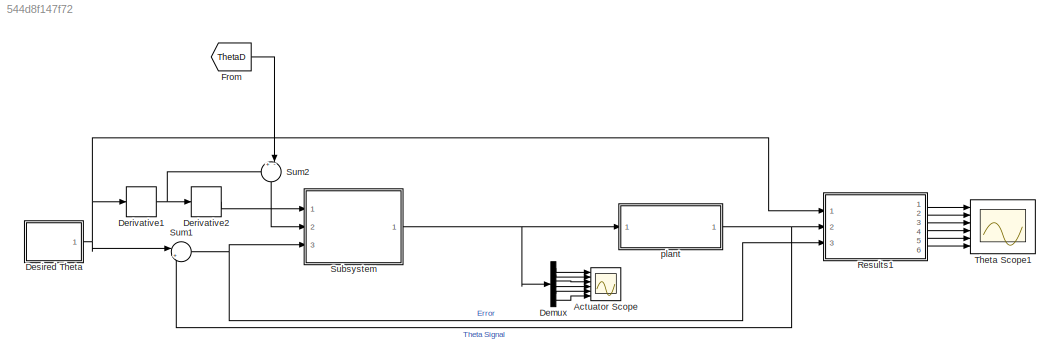
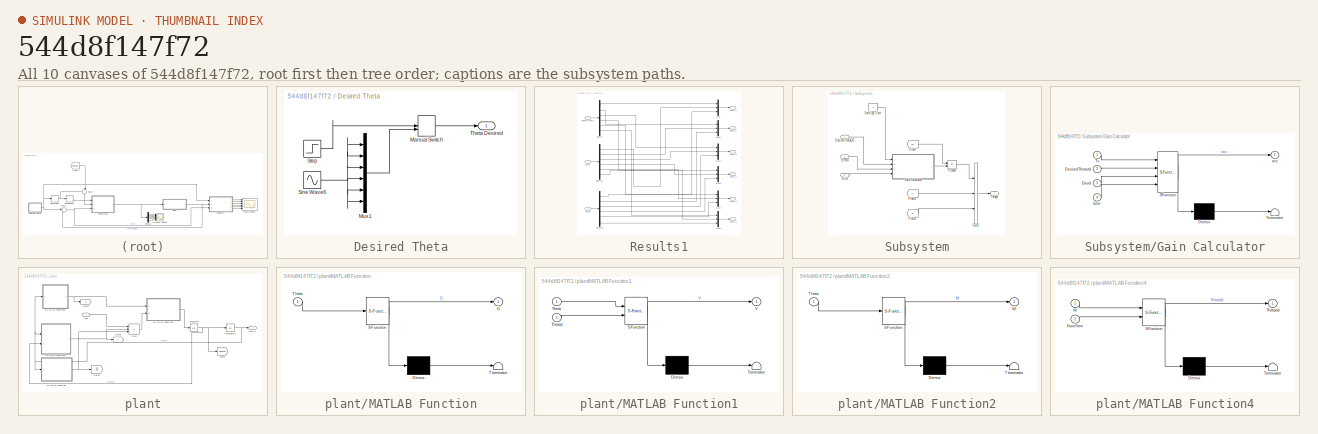
[diagram: thumbnail index - all 10 canvases of the model, root first then tree order]
MODEL slx_544d8f147f72
KIND model
CONFIG AbsTol = auto
CONFIG EnableMultiTasking = off
CONFIG FixedStep = auto
CONFIG MaxStep = auto
CONFIG MinStep = auto
CONFIG RelTol = 1e-3
CONFIG SampleTimeConstraint = Unconstrained
CONFIG SolverName = FixedStepAuto
CONFIG StartTime = 0.0
CONFIG StopTime = 20
BLOCK [Scope] Actuator Scope
  Floating = off
  NumInputPorts = 6
  Ports = [6]
  ScopeSpecificationString = Simulink.scopes.TimeScopeBlockCfg('CurrentConfiguration', extmgr.ConfigurationSet(extmgr.Configuration('Core','General UI',true),extmgr.Configuration('Core','Source UI',true),extmgr.Configuration('Sources','WiredSimulink',true,'DataLoggingVariableName','ScopeData1'),extmgr.Configuration('Visuals','Time Domain',true,'SerializedDisplays',{struct('MinYLimReal','-28984247.08049','MaxYLimReal','2840806...<+4973ch>
BLOCK [Demux] Demux
  Outputs = 6
  Ports = [1, 6]
BLOCK [Derivative] Derivative1
BLOCK [Derivative] Derivative2
BLOCK [SubSystem] Desired Theta
  Ports = [0, 1]
  RequestExecContextInheritance = off
  ShowPortLabels = none
BLOCK [ManualSwitch] Desired Theta/Manual Switch
BLOCK [Mux] Desired Theta/Mux1
  DisplayOption = bar
  Inputs = 6
  Ports = [6, 1]
BLOCK [Sin] Desired Theta/Sine Wave6
  Ports = [0, 1]
  SampleTime = 0
BLOCK [Step] Desired Theta/Step
  After = [1;1;1;1;1;1];
  Before = [0;0;0;0;0;0];
  SampleTime = 0
  Time = 0
BLOCK [Outport] Desired Theta/Theta Desired
  VectorParamsAs1DForOutWhenUnconnected = off
BLOCK [From] From
  GotoTag = ThetaD
  TagVisibility = global
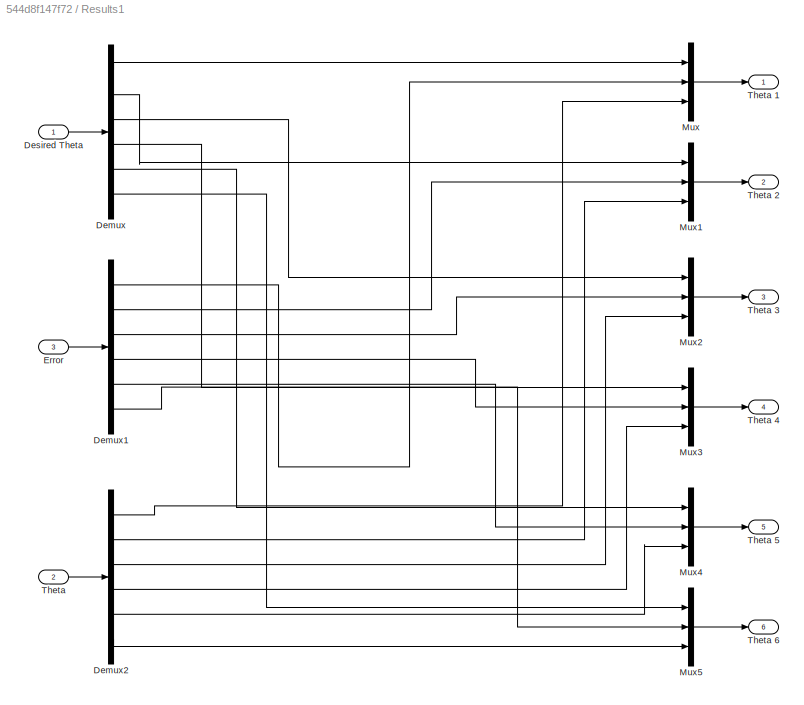
BLOCK [SubSystem] Results1
  Ports = [3, 6]
  RequestExecContextInheritance = off
BLOCK [Demux] Results1/Demux
  Outputs = 6
  Ports = [1, 6]
BLOCK [Demux] Results1/Demux1
  Outputs = 6
  Ports = [1, 6]
BLOCK [Demux] Results1/Demux2
  Outputs = 6
  Ports = [1, 6]
BLOCK [Inport] Results1/Desired Theta
BLOCK [Inport] Results1/Error
  Port = 3
BLOCK [Mux] Results1/Mux
  DisplayOption = bar
  Inputs = 3
  Ports = [3, 1]
BLOCK [Mux] Results1/Mux1
  DisplayOption = bar
  Inputs = 3
  Ports = [3, 1]
BLOCK [Mux] Results1/Mux2
  DisplayOption = bar
  Inputs = 3
  Ports = [3, 1]
BLOCK [Mux] Results1/Mux3
  DisplayOption = bar
  Inputs = 3
  Ports = [3, 1]
BLOCK [Mux] Results1/Mux4
  DisplayOption = bar
  Inputs = 3
  Ports = [3, 1]
BLOCK [Mux] Results1/Mux5
  DisplayOption = bar
  Inputs = 3
  Ports = [3, 1]
BLOCK [Inport] Results1/Theta
  Port = 2
BLOCK [Outport] Results1/Theta 1
  VectorParamsAs1DForOutWhenUnconnected = off
BLOCK [Outport] Results1/Theta 2
  Port = 2
  VectorParamsAs1DForOutWhenUnconnected = off
BLOCK [Outport] Results1/Theta 3
  Port = 3
  VectorParamsAs1DForOutWhenUnconnected = off
BLOCK [Outport] Results1/Theta 4
  Port = 4
  VectorParamsAs1DForOutWhenUnconnected = off
BLOCK [Outport] Results1/Theta 5
  Port = 5
  VectorParamsAs1DForOutWhenUnconnected = off
BLOCK [Outport] Results1/Theta 6
  Port = 6
  VectorParamsAs1DForOutWhenUnconnected = off
BLOCK [SubSystem] Subsystem
  Ports = [3, 1]
  RequestExecContextInheritance = off
BLOCK [Inport] Subsystem/Desired ThetaDD
BLOCK [Inport] Subsystem/Error
  Port = 3
BLOCK [Inport] Subsystem/ErrorD
  Port = 2
BLOCK [From] Subsystem/From
  GotoTag = M
  TagVisibility = global
BLOCK [From] Subsystem/From1
  GotoTag = V
  TagVisibility = global
BLOCK [From] Subsystem/From2
  GotoTag = G
  TagVisibility = global
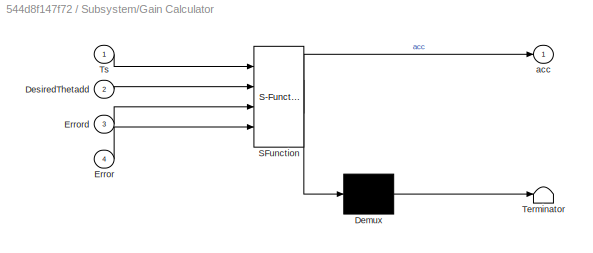
BLOCK [SubSystem] Subsystem/Gain Calculator
  ErrorFcn = Stateflow.Translate.translate
  PermitHierarchicalResolution = ExplicitOnly
  Ports = [4, 1]
  RequestExecContextInheritance = off
  SFBlockType = MATLAB Function
  TreatAsAtomicUnit = on
BLOCK [Demux] Subsystem/Gain Calculator/ Demux 
  Outputs = 1
  Ports = [1, 1]
BLOCK [S-Function] Subsystem/Gain Calculator/ SFunction 
  EnableBusSupport = on
  FunctionName = sf_sfun
  PortCounts = [4 2]
  Ports = [4, 2]
  SFcnIsStateOwnerBlock = off
  SFunctionDeploymentMode = off
  Tag = Stateflow S-Function 9
BLOCK [Terminator] Subsystem/Gain Calculator/ Terminator 
BLOCK [Inport] Subsystem/Gain Calculator/DesiredThetadd
  Port = 2
BLOCK [Inport] Subsystem/Gain Calculator/Error
  Port = 4
BLOCK [Inport] Subsystem/Gain Calculator/Errord
  Port = 3
BLOCK [Inport] Subsystem/Gain Calculator/Ts
BLOCK [Outport] Subsystem/Gain Calculator/acc
  VectorParamsAs1DForOutWhenUnconnected = off
BLOCK [Product] Subsystem/Product
  Multiplication = Matrix(*)
  Ports = [2, 1]
BLOCK [Constant] Subsystem/Settling Time
BLOCK [Sum] Subsystem/Sum1
  IconShape = rectangular
  Inputs = +++
  Ports = [3, 1]
BLOCK [Outport] Subsystem/Torque 
  VectorParamsAs1DForOutWhenUnconnected = off
BLOCK [Sum] Sum1
  Inputs = |+-
  Ports = [2, 1]
BLOCK [Sum] Sum2
  Inputs = +-|
  NameLocation = left
  Ports = [2, 1]
BLOCK [Scope] Theta Scope1
  Floating = off
  NumInputPorts = 6
  Ports = [6]
  ScopeSpecificationString = Simulink.scopes.TimeScopeBlockCfg('CurrentConfiguration', extmgr.ConfigurationSet(extmgr.Configuration('Core','General UI',true),extmgr.Configuration('Core','Source UI',true),extmgr.Configuration('Sources','WiredSimulink',true,'DataLoggingVariableName','ScopeData1'),extmgr.Configuration('Visuals','Time Domain',true,'SerializedDisplays',{struct('MinYLimReal','-1.25466','MaxYLimReal','1.25616','YLab...<+5202ch>
BLOCK [SubSystem] plant
  Ports = [1, 1]
  RequestExecContextInheritance = off
BLOCK [Goto] plant/Goto
  GotoTag = ThetaD
  TagVisibility = global
BLOCK [Goto] plant/Goto1
  GotoTag = G
  TagVisibility = global
BLOCK [Goto] plant/Goto2
  GotoTag = V
  TagVisibility = global
BLOCK [Goto] plant/Goto3
  GotoTag = M
  TagVisibility = global
BLOCK [Integrator] plant/Integrator
  InitialCondition = [0;0;0;0;0;0]
  Ports = [1, 1]
BLOCK [Integrator] plant/Integrator1
  InitialCondition = [0;0;0;0;0;0]
  Ports = [1, 1]
BLOCK [SubSystem] plant/MATLAB Function
  ErrorFcn = Stateflow.Translate.translate
  PermitHierarchicalResolution = ExplicitOnly
  Ports = [1, 1]
  RequestExecContextInheritance = off
  SFBlockType = MATLAB Function
  TreatAsAtomicUnit = on
BLOCK [Demux] plant/MATLAB Function/ Demux 
  Outputs = 1
  Ports = [1, 1]
BLOCK [S-Function] plant/MATLAB Function/ SFunction 
  EnableBusSupport = on
  FunctionName = sf_sfun
  PortCounts = [1 2]
  Ports = [1, 2]
  SFcnIsStateOwnerBlock = off
  SFunctionDeploymentMode = off
  Tag = Stateflow S-Function 4
BLOCK [Terminator] plant/MATLAB Function/ Terminator 
BLOCK [Outport] plant/MATLAB Function/G
  VectorParamsAs1DForOutWhenUnconnected = off
BLOCK [Inport] plant/MATLAB Function/Theta
BLOCK [SubSystem] plant/MATLAB Function1
  ErrorFcn = Stateflow.Translate.translate
  PermitHierarchicalResolution = ExplicitOnly
  Ports = [2, 1]
  RequestExecContextInheritance = off
  SFBlockType = MATLAB Function
  TreatAsAtomicUnit = on
BLOCK [Demux] plant/MATLAB Function1/ Demux 
  Outputs = 1
  Ports = [1, 1]
BLOCK [S-Function] plant/MATLAB Function1/ SFunction 
  EnableBusSupport = on
  FunctionName = sf_sfun
  PortCounts = [2 2]
  Ports = [2, 2]
  SFcnIsStateOwnerBlock = off
  SFunctionDeploymentMode = off
  Tag = Stateflow S-Function 1
BLOCK [Terminator] plant/MATLAB Function1/ Terminator 
BLOCK [Inport] plant/MATLAB Function1/Theta
BLOCK [Inport] plant/MATLAB Function1/Thetad
  Port = 2
BLOCK [Outport] plant/MATLAB Function1/V
  VectorParamsAs1DForOutWhenUnconnected = off
BLOCK [SubSystem] plant/MATLAB Function2
  ErrorFcn = Stateflow.Translate.translate
  PermitHierarchicalResolution = ExplicitOnly
  Ports = [1, 1]
  RequestExecContextInheritance = off
  SFBlockType = MATLAB Function
  TreatAsAtomicUnit = on
BLOCK [Demux] plant/MATLAB Function2/ Demux 
  Outputs = 1
  Ports = [1, 1]
BLOCK [S-Function] plant/MATLAB Function2/ SFunction 
  EnableBusSupport = on
  FunctionName = sf_sfun
  PortCounts = [1 2]
  Ports = [1, 2]
  SFcnIsStateOwnerBlock = off
  SFunctionDeploymentMode = off
  Tag = Stateflow S-Function 3
BLOCK [Terminator] plant/MATLAB Function2/ Terminator 
BLOCK [Outport] plant/MATLAB Function2/M
  VectorParamsAs1DForOutWhenUnconnected = off
BLOCK [Inport] plant/MATLAB Function2/Theta
BLOCK [SubSystem] plant/MATLAB Function4
  ErrorFcn = Stateflow.Translate.translate
  PermitHierarchicalResolution = ExplicitOnly
  Ports = [2, 1]
  RequestExecContextInheritance = off
  SFBlockType = MATLAB Function
  TreatAsAtomicUnit = on
BLOCK [Demux] plant/MATLAB Function4/ Demux 
  Outputs = 1
  Ports = [1, 1]
BLOCK [S-Function] plant/MATLAB Function4/ SFunction 
  EnableBusSupport = on
  FunctionName = sf_sfun
  PortCounts = [2 2]
  Ports = [2, 2]
  SFcnIsStateOwnerBlock = off
  SFunctionDeploymentMode = off
  Tag = Stateflow S-Function 5
BLOCK [Terminator] plant/MATLAB Function4/ Terminator 
BLOCK [Inport] plant/MATLAB Function4/M
BLOCK [Inport] plant/MATLAB Function4/NumTerm
  Port = 2
BLOCK [Outport] plant/MATLAB Function4/Thetadd
  VectorParamsAs1DForOutWhenUnconnected = off
BLOCK [Sum] plant/Sum
  IconShape = rectangular
  Inputs = +--
  Ports = [3, 1]
BLOCK [Outport] plant/THETA
BLOCK [Inport] plant/taw
LINE Demux:1 -> Actuator Scope:1
LINE Demux:2 -> Actuator Scope:2
LINE Demux:3 -> Actuator Scope:3
LINE Demux:4 -> Actuator Scope:4
LINE Demux:5 -> Actuator Scope:5
LINE Demux:6 -> Actuator Scope:6
NET Derivative1:1 -> Derivative2:1, Sum2:1
LINE Derivative2:1 -> Subsystem:1
LINE Desired Theta/Manual Switch:1 -> Desired Theta/Theta Desired:1
LINE Desired Theta/Mux1:1 -> Desired Theta/Manual Switch:2
NET Desired Theta/Sine Wave6:1 -> Desired Theta/Mux1:1, Desired Theta/Mux1:2, Desired Theta/Mux1:3, Desired Theta/Mux1:4, Desired Theta/Mux1:5, Desired Theta/Mux1:6
LINE Desired Theta/Step:1 -> Desired Theta/Manual Switch:1
NET Desired Theta:1 -> Derivative1:1, Results1:1, Sum1:1
LINE From:1 -> Sum2:2
LINE Results1/Demux1:1 -> Results1/Mux:2
LINE Results1/Demux1:2 -> Results1/Mux1:2
LINE Results1/Demux1:3 -> Results1/Mux2:2
LINE Results1/Demux1:4 -> Results1/Mux3:2
LINE Results1/Demux1:5 -> Results1/Mux4:2
LINE Results1/Demux1:6 -> Results1/Mux5:2
LINE Results1/Demux2:1 -> Results1/Mux:3
LINE Results1/Demux2:2 -> Results1/Mux1:3
LINE Results1/Demux2:3 -> Results1/Mux2:3
LINE Results1/Demux2:4 -> Results1/Mux3:3
LINE Results1/Demux2:5 -> Results1/Mux4:3
LINE Results1/Demux2:6 -> Results1/Mux5:3
LINE Results1/Demux:1 -> Results1/Mux:1
LINE Results1/Demux:2 -> Results1/Mux1:1
LINE Results1/Demux:3 -> Results1/Mux2:1
LINE Results1/Demux:4 -> Results1/Mux3:1
LINE Results1/Demux:5 -> Results1/Mux4:1
LINE Results1/Demux:6 -> Results1/Mux5:1
LINE Results1/Desired Theta:1 -> Results1/Demux:1
LINE Results1/Error:1 -> Results1/Demux1:1
LINE Results1/Mux1:1 -> Results1/Theta 2:1
LINE Results1/Mux2:1 -> Results1/Theta 3:1
LINE Results1/Mux3:1 -> Results1/Theta 4:1
LINE Results1/Mux4:1 -> Results1/Theta 5:1
LINE Results1/Mux5:1 -> Results1/Theta 6:1
LINE Results1/Mux:1 -> Results1/Theta 1:1
LINE Results1/Theta:1 -> Results1/Demux2:1
LINE Results1:1 -> Theta Scope1:1
LINE Results1:2 -> Theta Scope1:2
LINE Results1:3 -> Theta Scope1:3
LINE Results1:4 -> Theta Scope1:4
LINE Results1:5 -> Theta Scope1:5
LINE Results1:6 -> Theta Scope1:6
LINE Subsystem/Desired ThetaDD:1 -> Subsystem/Gain Calculator:2
LINE Subsystem/Error:1 -> Subsystem/Gain Calculator:4
LINE Subsystem/ErrorD:1 -> Subsystem/Gain Calculator:3
LINE Subsystem/From1:1 -> Subsystem/Sum1:2
LINE Subsystem/From2:1 -> Subsystem/Sum1:3
LINE Subsystem/From:1 -> Subsystem/Product:1
LINE Subsystem/Gain Calculator:1 -> Subsystem/Product:2
LINE Subsystem/Product:1 -> Subsystem/Sum1:1
LINE Subsystem/Settling Time:1 -> Subsystem/Gain Calculator:1
LINE Subsystem/Sum1:1 -> Subsystem/Torque :1
NET Subsystem:1 -> Demux:1, plant:1
NET Sum1:1 -> Results1:3, Subsystem:3
LINE Sum2:1 -> Subsystem:2
NET plant/Integrator1:1 -> plant/MATLAB Function1:1, plant/MATLAB Function2:1, plant/MATLAB Function:1, plant/THETA:1
NET plant/Integrator:1 -> plant/Goto:1, plant/Integrator1:1, plant/MATLAB Function1:2
NET plant/MATLAB Function1:1 -> plant/Goto2:1, plant/Sum:2
NET plant/MATLAB Function2:1 -> plant/Goto3:1, plant/MATLAB Function4:1
LINE plant/MATLAB Function4:1 -> plant/Integrator:1
NET plant/MATLAB Function:1 -> plant/Goto1:1, plant/Sum:3
LINE plant/Sum:1 -> plant/MATLAB Function4:2
LINE plant/taw:1 -> plant/Sum:1
NET plant:1 -> Results1:2, Sum1:2
note: NET lines group one-source signal fan-out (src -> all destinations, sorted); 1:1 wires keep LINE
CHART plant/MATLAB Function1 states=1 transitions=1
  STATE_LABEL 'eML_blk_kernel()'
  STATE_LABEL 'SCRIPT:\nfunction V = NumV(Theta,Thetad)\nt1=Theta(1);\nt2=Theta(2);\nt3=Theta(3);\nt4=Theta(4);\nt5=Theta(5);\nt6=Theta(6);\ntd1=Thetad(1);\ntd2=Thetad(2);\ntd3=Thetad(3);\ntd4=Thetad(4);\ntd5=Thetad(5);\ntd6=Thetad(6);\n\nL1=0.1025;\nL2=0.408;\nL3=0.376;\nL4=0.1025; \nL5=0.1025;\n\nV=[td2*(td1*(25109.9375*sin(2.0*t2 + 2.0*t3 + 2.0*t4) + 1339251.84*sin(2.0*t2 + t3) + 184221.2*sin(2.0*t2 + 2.0*t3 + t4) + 1047890.82668...<+3608ch>'
CHART plant/MATLAB Function2 states=1 transitions=1
  STATE_LABEL 'eML_blk_kernel()'
  STATE_LABEL 'SCRIPT:\nfunction M = NumM(Theta)\nt1=Theta(1);\nt2=Theta(2);\nt3=Theta(3);\nt4=Theta(4);\nt5=Theta(5);\nt6=Theta(6);\n\nL1=0.1025;\nL2=0.408;\nL3=0.376;\nL4=0.1025; \nL5=0.1025;\n\n\nM=zeros(6);\nM(1)=(999498*cos(t3 + t4))/5 - (9799*L4)/40 - (33481296*cos(2*t2 + t3))/25 -...\n    (30203396714246934648101547*cos(2*t2))/28823037615171174400 - (401759*cos(2*t2 + 2*t3 + 2*t4))/16 -...\n    (15427656*cos(2*t2 + 2*t3))/2...<+3608ch>'
CHART plant/MATLAB Function states=1 transitions=1
  STATE_LABEL 'eML_blk_kernel()'
  STATE_LABEL 'SCRIPT:\nfunction G = NumG(Theta)\nt1=Theta(1);\nt2=Theta(2);\nt3=Theta(3);\nt4=Theta(4);\nt5=Theta(5);\nt6=Theta(6);\n\nL1=0.1025;\nL2=0.408;\nL3=0.376;\nL4=0.1025; \nL5=0.1025;\n\nG=[0\n   5.8614750000000004348521542851813*L3*sin(t2 + t3 + t4 + t5) - 32201.128800000001308035280089825*sin(t2 + t3) - 50391.223200000000709678715793416*sin(t2) - 4806.4095000000003565787665138487*sin(t2 + t3 + t4) - 37.1308500000000...<+803ch>'
CHART plant/MATLAB Function4 states=1 transitions=1
  STATE_LABEL 'eML_blk_kernel()'
  STATE_LABEL 'SCRIPT:\nfunction Thetadd = Response(M,NumTerm)\nThetadd=M\\NumTerm;\n'
CHART Subsystem/Gain Calculator states=1 transitions=1
  STATE_LABEL 'eML_blk_kernel()'
  STATE_LABEL 'SCRIPT:\nfunction acc = GainCalc(Ts,DesiredThetadd,Errord,Error)\nZETTA=1;\nOMEGA=4/ZETTA/Ts;\n\nKp=diag(OMEGA^2*ones(6,1));\nKd=diag(2*ZETTA*OMEGA*ones(6,1));\n\nacc=DesiredThetadd+Kd*Errord+Kp*Error;\n'
CHART  states=0 transitions=0
CHART  states=0 transitions=0
CHART  states=0 transitions=0
CHART  states=0 transitions=0
CHART  states=0 transitions=0
